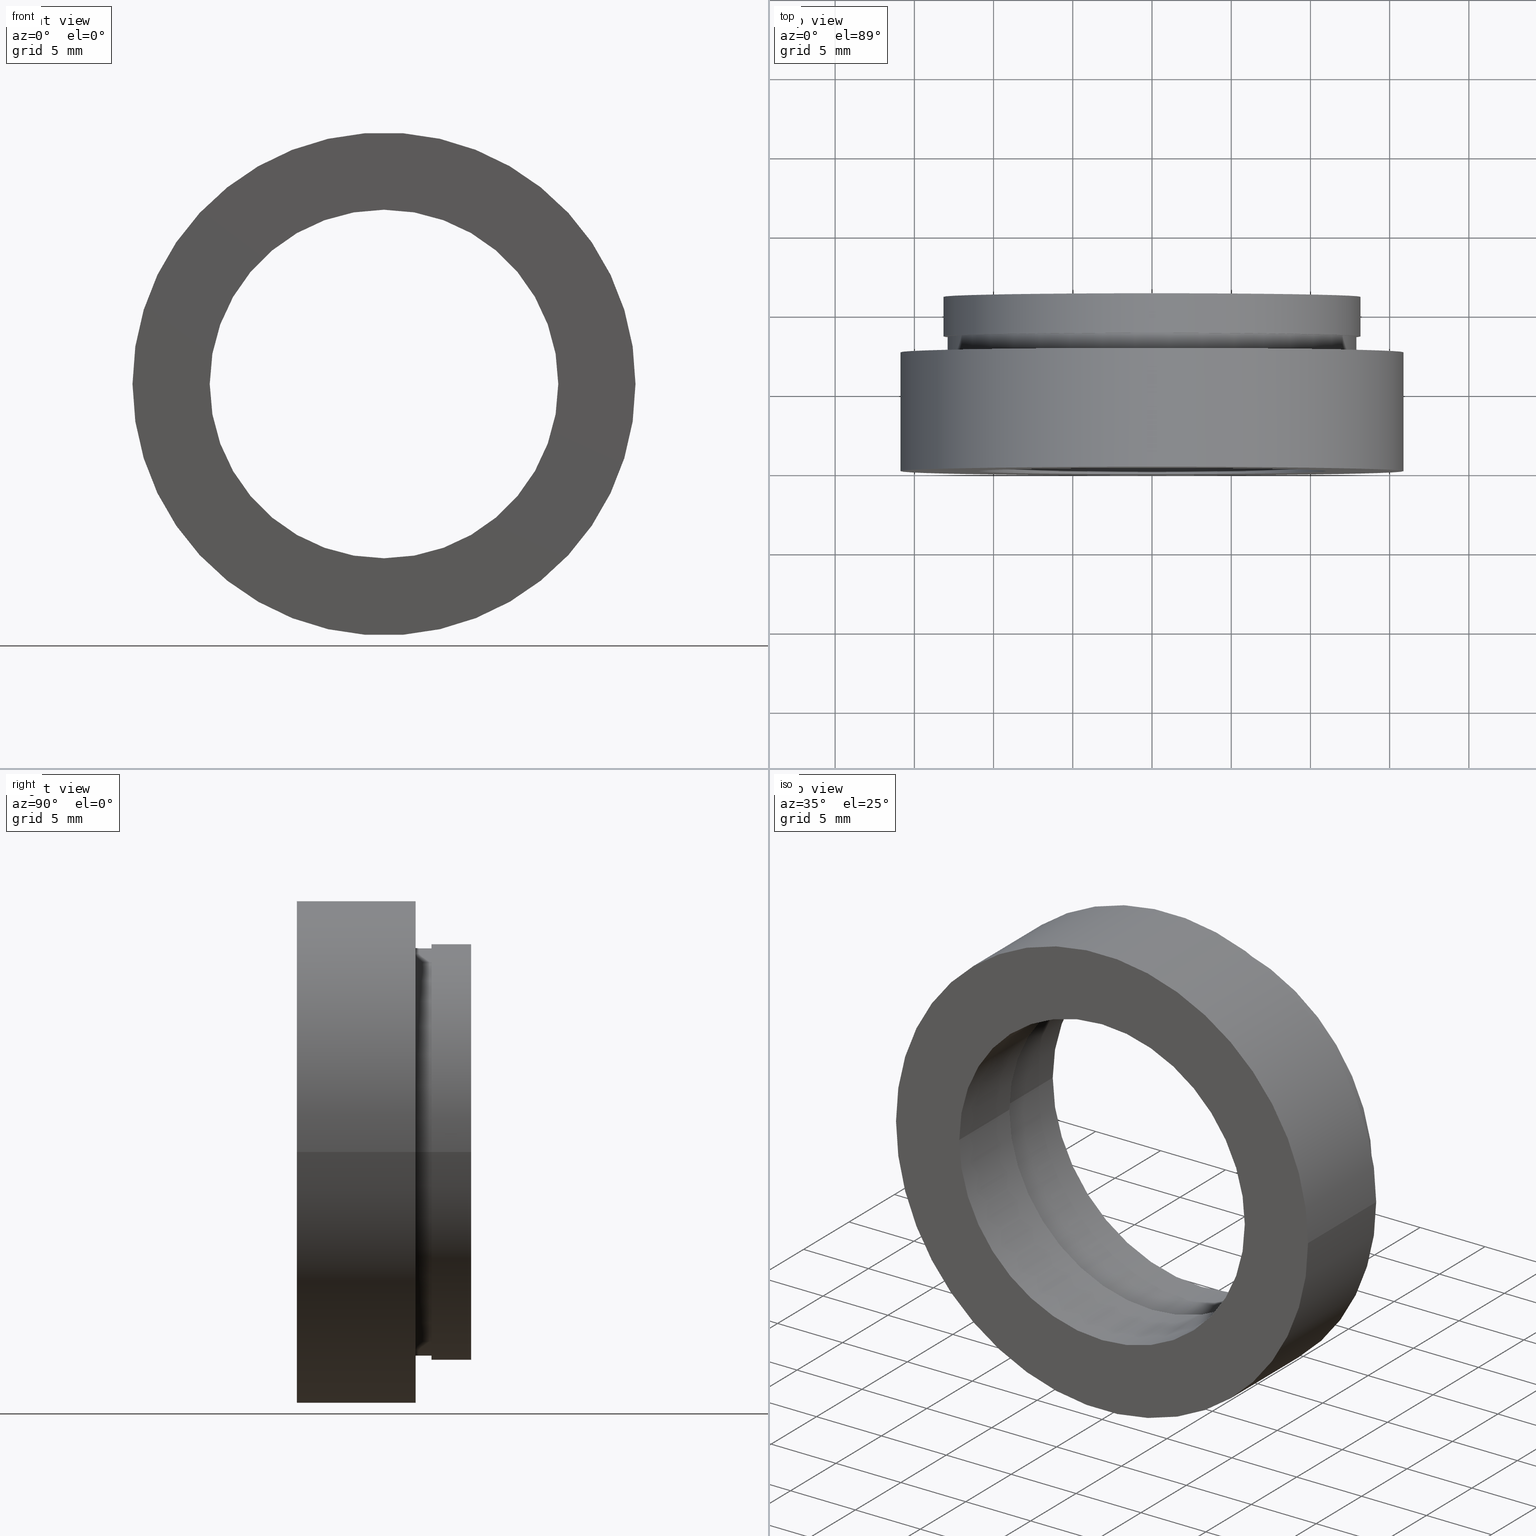
[diagram: canonical four-view strip — front | top / right | iso, engineering-drawing reading convention]
A machine part, canonical four-view strip (front | top / right | iso — engineering-drawing reading convention). The complete STEP part file that produces these views, byte-faithful:
ISO-10303-21;
HEADER;
FILE_DESCRIPTION (( 'STEP AP214' ),
    '1' );
FILE_NAME ('504117.STEP',
    '2019-10-10T01:30:43',
    ( '' ),
    ( '' ),
    'SwSTEP 2.0',
    'SolidWorks 2016',
    '' );
FILE_SCHEMA (( 'AUTOMOTIVE_DESIGN' ));
ENDSEC;

DATA;
#1 =( NAMED_UNIT ( * ) PLANE_ANGLE_UNIT ( ) SI_UNIT ( $, .RADIAN. ) );
#2 = FACE_OUTER_BOUND ( 'NONE', #67, .T. ) ;
#3 = ORIENTED_EDGE ( 'NONE', *, *, #204, .F. ) ;
#4 = CARTESIAN_POINT ( 'NONE',  ( 2.067940818438636500E-015, -3.469446951953614200E-015, 0.0000000000000000000 ) ) ;
#5 = EDGE_LOOP ( 'NONE', ( #502, #163 ) ) ;
#6 = LINE ( 'NONE', #264, #129 ) ;
#7 = DIRECTION ( 'NONE',  ( -1.000000000000000000, -1.508455196501571400E-016, 0.0000000000000000000 ) ) ;
#8 = SURFACE_STYLE_USAGE ( .BOTH. , #374 ) ;
#9 = CARTESIAN_POINT ( 'NONE',  ( 12.90000000000000200, 7.500000000000000000, 0.0000000000000000000 ) ) ;
#10 = SURFACE_STYLE_FILL_AREA ( #271 ) ;
#11 = DIRECTION ( 'NONE',  ( -1.224646799147351000E-016, 1.000000000000000000, -0.0000000000000000000 ) ) ;
#12 = DIRECTION ( 'NONE',  ( -1.224646799147351000E-016, 1.000000000000000000, -0.0000000000000000000 ) ) ;
#13 = DIRECTION ( 'NONE',  ( -1.224646799147351000E-016, 1.000000000000000000, -0.0000000000000000000 ) ) ;
#14 = FILL_AREA_STYLE ('',( #344 ) ) ;
#15 = CARTESIAN_POINT ( 'NONE',  ( 0.0000000000000000000, 16.88601823708207700, 0.0000000000000000000 ) ) ;
#16 = AXIS2_PLACEMENT_3D ( 'NONE', #4, #175, #98 ) ;
#17 = ORIENTED_EDGE ( 'NONE', *, *, #515, .T. ) ;
#18 = PLANE ( 'NONE',  #33 ) ;
#19 = DIRECTION ( 'NONE',  ( -1.224646799147351000E-016, 1.000000000000000000, -0.0000000000000000000 ) ) ;
#20 = DIRECTION ( 'NONE',  ( -1.000000000000000000, -1.577021341797097300E-016, 0.0000000000000000000 ) ) ;
#21 = CARTESIAN_POINT ( 'NONE',  ( 0.0000000000000000000, 16.88601823708207700, 0.0000000000000000000 ) ) ;
#22 = CARTESIAN_POINT ( 'NONE',  ( 0.0000000000000000000, 16.88601823708207700, 0.0000000000000000000 ) ) ;
#23 = CIRCLE ( 'NONE', #487, 12.90000000000000000 ) ;
#24 = LINE ( 'NONE', #512, #409 ) ;
#25 =( NAMED_UNIT ( * ) SI_UNIT ( $, .STERADIAN. ) SOLID_ANGLE_UNIT ( ) );
#26 =( NAMED_UNIT ( * ) PLANE_ANGLE_UNIT ( ) SI_UNIT ( $, .RADIAN. ) );
#27 = CARTESIAN_POINT ( 'NONE',  ( 1.026991039163387700E-015, 8.499999999999998200, 0.0000000000000000000 ) ) ;
#28 = SURFACE_STYLE_USAGE ( .BOTH. , #481 ) ;
#29 = FACE_BOUND ( 'NONE', #5, .T. ) ;
#30 =( NAMED_UNIT ( * ) PLANE_ANGLE_UNIT ( ) SI_UNIT ( $, .RADIAN. ) );
#31 = FACE_OUTER_BOUND ( 'NONE', #328, .T. ) ;
#32 = STYLED_ITEM ( 'NONE', ( #229 ), #356 ) ;
#33 = AXIS2_PLACEMENT_3D ( 'NONE', #9, #147, #193 ) ;
#34 = SURFACE_SIDE_STYLE ('',( #10 ) ) ;
#35 = COLOUR_RGB ( '',1.000000000000000000, 1.000000000000000000, 1.000000000000000000 ) ;
#36 =( GEOMETRIC_REPRESENTATION_CONTEXT ( 3 ) GLOBAL_UNCERTAINTY_ASSIGNED_CONTEXT ( ( #448 ) ) GLOBAL_UNIT_ASSIGNED_CONTEXT ( ( #111, #530, #446 ) ) REPRESENTATION_CONTEXT ( 'NONE', 'WORKASPACE' ) );
#37 = ORIENTED_EDGE ( 'NONE', *, *, #365, .T. ) ;
#38 = ADVANCED_FACE ( 'NONE', ( #511 ), #172, .T. ) ;
#39 = PRESENTATION_STYLE_ASSIGNMENT (( #394 ) ) ;
#40 = UNCERTAINTY_MEASURE_WITH_UNIT (LENGTH_MEASURE( 1.000000000000000100E-005 ), #181, 'distance_accuracy_value', 'NONE');
#41 = AXIS2_PLACEMENT_3D ( 'NONE', #60, #188, #477 ) ;
#42 = CIRCLE ( 'NONE', #16, 15.87499999999999600 ) ;
#43 = VERTEX_POINT ( 'NONE', #227 ) ;
#44 = DIRECTION ( 'NONE',  ( -1.224646799147351000E-016, 1.000000000000000000, -0.0000000000000000000 ) ) ;
#45 = FACE_BOUND ( 'NONE', #490, .T. ) ;
#46 = DIRECTION ( 'NONE',  ( -1.000000000000000000, -1.224646799147351000E-016, 0.0000000000000000000 ) ) ;
#47 = ORIENTED_EDGE ( 'NONE', *, *, #300, .F. ) ;
#48 = CARTESIAN_POINT ( 'NONE',  ( -11.50000000000000200, 10.99999999999999500, 0.0000000000000000000 ) ) ;
#49 = DIRECTION ( 'NONE',  ( -1.224646799147351000E-016, 1.000000000000000000, 0.0000000000000000000 ) ) ;
#50 = CARTESIAN_POINT ( 'NONE',  ( 15.87500000000000000, 2.985076572921666300E-016, 0.0000000000000000000 ) ) ;
#51 = EDGE_CURVE ( 'NONE', #93, #419, #370, .T. ) ;
#52 =( GEOMETRIC_REPRESENTATION_CONTEXT ( 3 ) GLOBAL_UNCERTAINTY_ASSIGNED_CONTEXT ( ( #343 ) ) GLOBAL_UNIT_ASSIGNED_CONTEXT ( ( #379, #54, #141 ) ) REPRESENTATION_CONTEXT ( 'NONE', 'WORKASPACE' ) );
#53 = DIRECTION ( 'NONE',  ( -1.224646799147351000E-016, 1.000000000000000000, -0.0000000000000000000 ) ) ;
#54 =( NAMED_UNIT ( * ) PLANE_ANGLE_UNIT ( ) SI_UNIT ( $, .RADIAN. ) );
#55 = DIRECTION ( 'NONE',  ( -1.000000000000000000, -1.318178933113075200E-016, 0.0000000000000000000 ) ) ;
#56 = FACE_OUTER_BOUND ( 'NONE', #489, .T. ) ;
#57 = AXIS2_PLACEMENT_3D ( 'NONE', #476, #149, #180 ) ;
#58 = CARTESIAN_POINT ( 'NONE',  ( -12.89999999999999900, 8.499999999999996400, 0.0000000000000000000 ) ) ;
#59 = CARTESIAN_POINT ( 'NONE',  ( 12.90000000000000200, 7.500000000000000000, 1.579794370900085700E-015 ) ) ;
#60 = CARTESIAN_POINT ( 'NONE',  ( 11.50000000000000200, 10.99999999999999800, 0.0000000000000000000 ) ) ;
#61 = FACE_OUTER_BOUND ( 'NONE', #153, .T. ) ;
#62 = SURFACE_STYLE_USAGE ( .BOTH. , #519 ) ;
#63 = DIRECTION ( 'NONE',  ( -1.000000000000000000, 0.0000000000000000000, 0.0000000000000000000 ) ) ;
#64 = CARTESIAN_POINT ( 'NONE',  ( 7.208293393765502500E-016, 10.99999999999999600, 0.0000000000000000000 ) ) ;
#65 = MECHANICAL_DESIGN_GEOMETRIC_PRESENTATION_REPRESENTATION (  '', ( #406 ), #475 ) ;
#66 = ORIENTED_EDGE ( 'NONE', *, *, #112, .F. ) ;
#67 = EDGE_LOOP ( 'NONE', ( #117, #393, #378, #329 ) ) ;
#68 = ORIENTED_EDGE ( 'NONE', *, *, #232, .T. ) ;
#69 = DIRECTION ( 'NONE',  ( -1.224646799147351000E-016, 1.000000000000000000, -0.0000000000000000000 ) ) ;
#70 = UNCERTAINTY_MEASURE_WITH_UNIT (LENGTH_MEASURE( 1.000000000000000100E-005 ), #509, 'distance_accuracy_value', 'NONE');
#71 = FACE_OUTER_BOUND ( 'NONE', #109, .T. ) ;
#72 = CARTESIAN_POINT ( 'NONE',  ( 11.00000000000000000, 16.88601823708207700, 1.347111479062088400E-015 ) ) ;
#73 = CARTESIAN_POINT ( 'NONE',  ( 0.0000000000000000000, 16.88601823708207700, 0.0000000000000000000 ) ) ;
#74 = ORIENTED_EDGE ( 'NONE', *, *, #252, .F. ) ;
#75 = COLOUR_RGB ( '',1.000000000000000000, 1.000000000000000000, 1.000000000000000000 ) ;
#76 = ORIENTED_EDGE ( 'NONE', *, *, #246, .T. ) ;
#77 = AXIS2_PLACEMENT_3D ( 'NONE', #64, #268, #55 ) ;
#78 = ORIENTED_EDGE ( 'NONE', *, *, #424, .F. ) ;
#79 = ORIENTED_EDGE ( 'NONE', *, *, #427, .F. ) ;
#80 = VERTEX_POINT ( 'NONE', #58 ) ;
#81 = ADVANCED_FACE ( 'NONE', ( #45, #167 ), #18, .F. ) ;
#82 = ADVANCED_FACE ( 'NONE', ( #56 ), #289, .F. ) ;
#83 = CYLINDRICAL_SURFACE ( 'NONE', #361, 11.00000000000000000 ) ;
#84 = ORIENTED_EDGE ( 'NONE', *, *, #403, .F. ) ;
#85 = EDGE_CURVE ( 'NONE', #162, #238, #6, .T. ) ;
#86 = AXIS2_PLACEMENT_3D ( 'NONE', #224, #101, #228 ) ;
#87 = MECHANICAL_DESIGN_GEOMETRIC_PRESENTATION_REPRESENTATION (  '', ( #122 ), #234 ) ;
#88 = VECTOR ( 'NONE', #12, 1000.000000000000000 ) ;
#89 = DIRECTION ( 'NONE',  ( -1.224646799147351000E-016, 1.000000000000000000, -0.0000000000000000000 ) ) ;
#90 = ORIENTED_EDGE ( 'NONE', *, *, #165, .F. ) ;
#91 = SURFACE_STYLE_USAGE ( .BOTH. , #330 ) ;
#92 = AXIS2_PLACEMENT_3D ( 'NONE', #185, #262, #152 ) ;
#93 = VERTEX_POINT ( 'NONE', #479 ) ;
#94 = FILL_AREA_STYLE ('',( #137 ) ) ;
#95 =( LENGTH_UNIT ( ) NAMED_UNIT ( * ) SI_UNIT ( .MILLI., .METRE. ) );
#96 = AXIS2_PLACEMENT_3D ( 'NONE', #171, #247, #128 ) ;
#97 = DIRECTION ( 'NONE',  ( -1.224646799147351000E-016, 1.000000000000000000, -0.0000000000000000000 ) ) ;
#98 = DIRECTION ( 'NONE',  ( -1.000000000000000000, -1.224646799147350700E-016, 0.0000000000000000000 ) ) ;
#99 = ORIENTED_EDGE ( 'NONE', *, *, #156, .T. ) ;
#100 = FILL_AREA_STYLE_COLOUR ( '', #267 ) ;
#101 = DIRECTION ( 'NONE',  ( 0.0000000000000000000, 0.0000000000000000000, 1.000000000000000000 ) ) ;
#102 = SURFACE_STYLE_USAGE ( .BOTH. , #298 ) ;
#103 = PRESENTATION_LAYER_ASSIGNMENT (  '', '', ( #525 ) ) ;
#104 = CARTESIAN_POINT ( 'NONE',  ( 2.067940818438636100E-015, 0.0000000000000000000, 0.0000000000000000000 ) ) ;
#105 = DIRECTION ( 'NONE',  ( -1.224646799147351000E-016, 1.000000000000000000, -0.0000000000000000000 ) ) ;
#106 = ORIENTED_EDGE ( 'NONE', *, *, #274, .T. ) ;
#107 = DIRECTION ( 'NONE',  ( -1.000000000000000000, -1.508455196501571200E-016, 0.0000000000000000000 ) ) ;
#108 = DIRECTION ( 'NONE',  ( -1.224646799147351000E-016, 1.000000000000000000, -0.0000000000000000000 ) ) ;
#109 = EDGE_LOOP ( 'NONE', ( #533, #206 ) ) ;
#110 = CARTESIAN_POINT ( 'NONE',  ( -10.99999999999999800, 5.499999999999996400, 0.0000000000000000000 ) ) ;
#111 =( LENGTH_UNIT ( ) NAMED_UNIT ( * ) SI_UNIT ( .MILLI., .METRE. ) );
#112 = EDGE_CURVE ( 'NONE', #395, #162, #250, .T. ) ;
#113 = AXIS2_PLACEMENT_3D ( 'NONE', #514, #218, #463 ) ;
#114 = CYLINDRICAL_SURFACE ( 'NONE', #386, 12.90000000000000000 ) ;
#115 = ORIENTED_EDGE ( 'NONE', *, *, #246, .F. ) ;
#116 = STYLED_ITEM ( 'NONE', ( #39 ), #210 ) ;
#117 = ORIENTED_EDGE ( 'NONE', *, *, #281, .F. ) ;
#118 = CARTESIAN_POINT ( 'NONE',  ( 1.026991039163387700E-015, 8.499999999999998200, 0.0000000000000000000 ) ) ;
#119 = DIRECTION ( 'NONE',  ( -1.224646799147351000E-016, 1.000000000000000000, -0.0000000000000000000 ) ) ;
#120 = STYLED_ITEM ( 'NONE', ( #398 ), #278 ) ;
#121 = ORIENTED_EDGE ( 'NONE', *, *, #274, .F. ) ;
#122 = STYLED_ITEM ( 'NONE', ( #183 ), #82 ) ;
#123 = CYLINDRICAL_SURFACE ( 'NONE', #177, 13.15999999999999800 ) ;
#124 = ORIENTED_EDGE ( 'NONE', *, *, #211, .F. ) ;
#125 = PRESENTATION_LAYER_ASSIGNMENT (  '', '', ( #406 ) ) ;
#126 = COLOUR_RGB ( '',1.000000000000000000, 1.000000000000000000, 1.000000000000000000 ) ;
#127 = DIRECTION ( 'NONE',  ( -1.000000000000000000, -2.185478394931410600E-016, 0.0000000000000000000 ) ) ;
#128 = DIRECTION ( 'NONE',  ( -1.000000000000000000, -1.344746880602176000E-016, 0.0000000000000000000 ) ) ;
#129 = VECTOR ( 'NONE', #433, 1000.000000000000000 ) ;
#130 = DIRECTION ( 'NONE',  ( -1.000000000000000000, 0.0000000000000000000, 0.0000000000000000000 ) ) ;
#131 = CARTESIAN_POINT ( 'NONE',  ( -11.49999999999999800, 5.499999999999996400, 0.0000000000000000000 ) ) ;
#132 = UNCERTAINTY_MEASURE_WITH_UNIT (LENGTH_MEASURE( 1.000000000000000100E-005 ), #293, 'distance_accuracy_value', 'NONE');
#133 = CIRCLE ( 'NONE', #436, 13.15999999999999800 ) ;
#134 = CARTESIAN_POINT ( 'NONE',  ( -15.87499999999999300, -5.413573745600033100E-015, 0.0000000000000000000 ) ) ;
#135 = CIRCLE ( 'NONE', #77, 13.16000000000000000 ) ;
#136 = PRODUCT_CONTEXT ( 'NONE', #384, 'mechanical' ) ;
#137 = FILL_AREA_STYLE_COLOUR ( '', #35 ) ;
#138 = EDGE_CURVE ( 'NONE', #395, #408, #24, .T. ) ;
#139 = PRODUCT_DEFINITION_FORMATION_WITH_SPECIFIED_SOURCE ( '�κ�', '', #310, .NOT_KNOWN. ) ;
#140 = CARTESIAN_POINT ( 'NONE',  ( -13.16000000000000000, 10.99999999999999500, 0.0000000000000000000 ) ) ;
#141 =( NAMED_UNIT ( * ) SI_UNIT ( $, .STERADIAN. ) SOLID_ANGLE_UNIT ( ) );
#142 = DIRECTION ( 'NONE',  ( -1.000000000000000000, -1.224646799147350700E-016, 0.0000000000000000000 ) ) ;
#143 = AXIS2_PLACEMENT_3D ( 'NONE', #308, #342, #20 ) ;
#144 = CLOSED_SHELL ( 'NONE', ( #322, #239, #278, #321, #82, #410, #210, #243, #367, #241, #412, #455, #496, #81, #38 ) ) ;
#145 = DIRECTION ( 'NONE',  ( -1.000000000000000000, -1.508455196501571200E-016, 0.0000000000000000000 ) ) ;
#146 = CARTESIAN_POINT ( 'NONE',  ( 1.149455719078122700E-015, 7.499999999999998200, 0.0000000000000000000 ) ) ;
#147 = DIRECTION ( 'NONE',  ( 1.224646799147351000E-016, -1.000000000000000000, 0.0000000000000000000 ) ) ;
#148 = FACE_OUTER_BOUND ( 'NONE', #474, .T. ) ;
#149 = DIRECTION ( 'NONE',  ( -1.224646799147351000E-016, 1.000000000000000000, -0.0000000000000000000 ) ) ;
#150 = CARTESIAN_POINT ( 'NONE',  ( 13.16000000000000000, 8.500000000000000000, 0.0000000000000000000 ) ) ;
#151 = AXIS2_PLACEMENT_3D ( 'NONE', #157, #158, #273 ) ;
#152 = DIRECTION ( 'NONE',  ( -1.000000000000000000, -1.318178933113075500E-016, 0.0000000000000000000 ) ) ;
#153 = EDGE_LOOP ( 'NONE', ( #115, #200 ) ) ;
#154 = SURFACE_SIDE_STYLE ('',( #447 ) ) ;
#155 =( LENGTH_UNIT ( ) NAMED_UNIT ( * ) SI_UNIT ( .MILLI., .METRE. ) );
#156 = EDGE_CURVE ( 'NONE', #279, #543, #176, .T. ) ;
#157 = CARTESIAN_POINT ( 'NONE',  ( 1.394385078907593000E-015, 5.499999999999998200, 0.0000000000000000000 ) ) ;
#158 = DIRECTION ( 'NONE',  ( -1.224646799147351000E-016, 1.000000000000000000, -0.0000000000000000000 ) ) ;
#159 = ORIENTED_EDGE ( 'NONE', *, *, #276, .F. ) ;
#160 = VECTOR ( 'NONE', #44, 1000.000000000000000 ) ;
#161 = AXIS2_PLACEMENT_3D ( 'NONE', #150, #49, #391 ) ;
#162 = VERTEX_POINT ( 'NONE', #469 ) ;
#163 = ORIENTED_EDGE ( 'NONE', *, *, #252, .T. ) ;
#164 = UNCERTAINTY_MEASURE_WITH_UNIT (LENGTH_MEASURE( 1.000000000000000100E-005 ), #155, 'distance_accuracy_value', 'NONE');
#165 = EDGE_CURVE ( 'NONE', #309, #364, #270, .T. ) ;
#166 = AXIS2_PLACEMENT_3D ( 'NONE', #27, #105, #354 ) ;
#167 = FACE_OUTER_BOUND ( 'NONE', #355, .T. ) ;
#168 = VERTEX_POINT ( 'NONE', #297 ) ;
#169 = CIRCLE ( 'NONE', #337, 11.50000000000000200 ) ;
#170 = VERTEX_POINT ( 'NONE', #390 ) ;
#171 = CARTESIAN_POINT ( 'NONE',  ( 1.149455719078122700E-015, 7.499999999999998200, 0.0000000000000000000 ) ) ;
#172 = CYLINDRICAL_SURFACE ( 'NONE', #458, 15.87500000000000000 ) ;
#173 = AXIS2_PLACEMENT_3D ( 'NONE', #225, #389, #346 ) ;
#174 = FILL_AREA_STYLE ('',( #312 ) ) ;
#175 = DIRECTION ( 'NONE',  ( -1.224646799147351000E-016, 1.000000000000000000, -0.0000000000000000000 ) ) ;
#176 = CIRCLE ( 'NONE', #57, 12.90000000000000000 ) ;
#177 = AXIS2_PLACEMENT_3D ( 'NONE', #22, #430, #397 ) ;
#178 = CARTESIAN_POINT ( 'NONE',  ( 13.15999999999999800, 16.88601823708207700, 1.611635187677916700E-015 ) ) ;
#179 = PRESENTATION_LAYER_ASSIGNMENT (  '', '', ( #122 ) ) ;
#180 = DIRECTION ( 'NONE',  ( -1.000000000000000000, -1.344746880602176000E-016, 0.0000000000000000000 ) ) ;
#181 =( LENGTH_UNIT ( ) NAMED_UNIT ( * ) SI_UNIT ( .MILLI., .METRE. ) );
#182 = CARTESIAN_POINT ( 'NONE',  ( 0.0000000000000000000, 16.88601823708207700, 0.0000000000000000000 ) ) ;
#183 = PRESENTATION_STYLE_ASSIGNMENT (( #62 ) ) ;
#184 = DIRECTION ( 'NONE',  ( -1.000000000000000000, 0.0000000000000000000, 0.0000000000000000000 ) ) ;
#185 = CARTESIAN_POINT ( 'NONE',  ( 1.026991039163387700E-015, 8.499999999999998200, 0.0000000000000000000 ) ) ;
#186 = PRESENTATION_STYLE_ASSIGNMENT (( #91 ) ) ;
#187 = CARTESIAN_POINT ( 'NONE',  ( 1.394385078907593000E-015, 5.499999999999998200, 0.0000000000000000000 ) ) ;
#188 = DIRECTION ( 'NONE',  ( 1.224646799147351000E-016, -1.000000000000000000, 0.0000000000000000000 ) ) ;
#189 = PRODUCT_RELATED_PRODUCT_CATEGORY ( 'part', '', ( #310 ) ) ;
#190 = DIRECTION ( 'NONE',  ( -1.224646799147351000E-016, 1.000000000000000000, -0.0000000000000000000 ) ) ;
#191 = DIRECTION ( 'NONE',  ( -1.224646799147351000E-016, 1.000000000000000000, -0.0000000000000000000 ) ) ;
#192 = ORIENTED_EDGE ( 'NONE', *, *, #400, .F. ) ;
#193 = DIRECTION ( 'NONE',  ( 1.000000000000000000, 1.224646799147351000E-016, 0.0000000000000000000 ) ) ;
#194 = DIRECTION ( 'NONE',  ( -1.000000000000000000, -1.577021341797097300E-016, 0.0000000000000000000 ) ) ;
#195 = DIRECTION ( 'NONE',  ( -1.000000000000000000, -1.092739197465705300E-016, 0.0000000000000000000 ) ) ;
#196 = LINE ( 'NONE', #230, #280 ) ;
#197 = PRODUCT_DEFINITION_CONTEXT ( 'detailed design', #470, 'design' ) ;
#198 = CIRCLE ( 'NONE', #327, 15.87500000000000000 ) ;
#199 = DIRECTION ( 'NONE',  ( -1.224646799147351000E-016, 1.000000000000000000, -0.0000000000000000000 ) ) ;
#200 = ORIENTED_EDGE ( 'NONE', *, *, #416, .F. ) ;
#201 = VERTEX_POINT ( 'NONE', #134 ) ;
#202 = MECHANICAL_DESIGN_GEOMETRIC_PRESENTATION_REPRESENTATION (  '', ( #32 ), #213 ) ;
#203 = CIRCLE ( 'NONE', #113, 13.16000000000000000 ) ;
#204 = EDGE_CURVE ( 'NONE', #170, #93, #528, .T. ) ;
#205 = VERTEX_POINT ( 'NONE', #140 ) ;
#206 = ORIENTED_EDGE ( 'NONE', *, *, #281, .T. ) ;
#207 = PRESENTATION_LAYER_ASSIGNMENT (  '', '', ( #32 ) ) ;
#208 = FACE_OUTER_BOUND ( 'NONE', #405, .T. ) ;
#209 = PRESENTATION_LAYER_ASSIGNMENT (  '', '', ( #501 ) ) ;
#210 = ADVANCED_FACE ( 'NONE', ( #208 ), #83, .F. ) ;
#211 = EDGE_CURVE ( 'NONE', #419, #93, #198, .T. ) ;
#212 = ORIENTED_EDGE ( 'NONE', *, *, #336, .F. ) ;
#213 =( GEOMETRIC_REPRESENTATION_CONTEXT ( 3 ) GLOBAL_UNCERTAINTY_ASSIGNED_CONTEXT ( ( #132 ) ) GLOBAL_UNIT_ASSIGNED_CONTEXT ( ( #293, #1, #251 ) ) REPRESENTATION_CONTEXT ( 'NONE', 'WORKASPACE' ) );
#214 = EDGE_LOOP ( 'NONE', ( #76, #535, #159, #357 ) ) ;
#215 = CARTESIAN_POINT ( 'NONE',  ( 13.16000000000000200, 8.500000000000000000, 1.611635187677917100E-015 ) ) ;
#216 =( LENGTH_UNIT ( ) NAMED_UNIT ( * ) SI_UNIT ( .MILLI., .METRE. ) );
#217 = CARTESIAN_POINT ( 'NONE',  ( 1.026991039163387700E-015, 8.499999999999998200, 0.0000000000000000000 ) ) ;
#218 = DIRECTION ( 'NONE',  ( -1.224646799147351000E-016, 1.000000000000000000, -0.0000000000000000000 ) ) ;
#219 = CIRCLE ( 'NONE', #314, 11.00000000000000000 ) ;
#220 = MECHANICAL_DESIGN_GEOMETRIC_PRESENTATION_REPRESENTATION (  '', ( #282 ), #275 ) ;
#221 = DIRECTION ( 'NONE',  ( -1.224646799147351000E-016, 1.000000000000000000, -0.0000000000000000000 ) ) ;
#222 = AXIS2_PLACEMENT_3D ( 'NONE', #187, #13, #7 ) ;
#223 = DIRECTION ( 'NONE',  ( -1.224646799147351000E-016, 1.000000000000000000, -0.0000000000000000000 ) ) ;
#224 = CARTESIAN_POINT ( 'NONE',  ( 0.0000000000000000000, 0.0000000000000000000, 0.0000000000000000000 ) ) ;
#225 = CARTESIAN_POINT ( 'NONE',  ( 11.00000000000000200, 5.500000000000000000, 0.0000000000000000000 ) ) ;
#226 = ORIENTED_EDGE ( 'NONE', *, *, #51, .F. ) ;
#227 = CARTESIAN_POINT ( 'NONE',  ( 12.90000000000000200, 8.500000000000000000, 1.579794370900085700E-015 ) ) ;
#228 = DIRECTION ( 'NONE',  ( 1.000000000000000000, 0.0000000000000000000, 0.0000000000000000000 ) ) ;
#229 = PRESENTATION_STYLE_ASSIGNMENT (( #8 ) ) ;
#230 = CARTESIAN_POINT ( 'NONE',  ( -11.00000000000000000, 16.88601823708207700, 0.0000000000000000000 ) ) ;
#231 = FILL_AREA_STYLE_COLOUR ( '', #126 ) ;
#232 = EDGE_CURVE ( 'NONE', #279, #80, #468, .T. ) ;
#233 = MECHANICAL_DESIGN_GEOMETRIC_PRESENTATION_REPRESENTATION (  '', ( #501 ), #450 ) ;
#234 =( GEOMETRIC_REPRESENTATION_CONTEXT ( 3 ) GLOBAL_UNCERTAINTY_ASSIGNED_CONTEXT ( ( #70 ) ) GLOBAL_UNIT_ASSIGNED_CONTEXT ( ( #509, #522, #348 ) ) REPRESENTATION_CONTEXT ( 'NONE', 'WORKASPACE' ) );
#235 =( LENGTH_UNIT ( ) NAMED_UNIT ( * ) SI_UNIT ( .MILLI., .METRE. ) );
#236 = CIRCLE ( 'NONE', #96, 12.90000000000000000 ) ;
#237 = LINE ( 'NONE', #72, #263 ) ;
#238 = VERTEX_POINT ( 'NONE', #527 ) ;
#239 = ADVANCED_FACE ( 'NONE', ( #31 ), #114, .T. ) ;
#240 = FACE_OUTER_BOUND ( 'NONE', #404, .T. ) ;
#241 = ADVANCED_FACE ( 'NONE', ( #537, #507 ), #523, .F. ) ;
#242 = SURFACE_STYLE_FILL_AREA ( #14 ) ;
#243 = ADVANCED_FACE ( 'NONE', ( #497, #71 ), #435, .F. ) ;
#244 = COLOUR_RGB ( '',1.000000000000000000, 1.000000000000000000, 1.000000000000000000 ) ;
#245 = MECHANICAL_DESIGN_GEOMETRIC_PRESENTATION_REPRESENTATION (  '', ( #120 ), #36 ) ;
#246 = EDGE_CURVE ( 'NONE', #538, #413, #292, .T. ) ;
#247 = DIRECTION ( 'NONE',  ( -1.224646799147351000E-016, 1.000000000000000000, -0.0000000000000000000 ) ) ;
#248 = ORIENTED_EDGE ( 'NONE', *, *, #418, .F. ) ;
#249 = DIRECTION ( 'NONE',  ( -1.000000000000000000, 0.0000000000000000000, 0.0000000000000000000 ) ) ;
#250 = CIRCLE ( 'NONE', #222, 11.50000000000000000 ) ;
#251 =( NAMED_UNIT ( * ) SI_UNIT ( $, .STERADIAN. ) SOLID_ANGLE_UNIT ( ) );
#252 = EDGE_CURVE ( 'NONE', #43, #80, #453, .T. ) ;
#253 = AXIS2_PLACEMENT_3D ( 'NONE', #505, #97, #503 ) ;
#254 = COLOUR_RGB ( '',1.000000000000000000, 1.000000000000000000, 1.000000000000000000 ) ;
#255 = PLANE ( 'NONE',  #369 ) ;
#256 = PRESENTATION_LAYER_ASSIGNMENT (  '', '', ( #116 ) ) ;
#257 = ORIENTED_EDGE ( 'NONE', *, *, #449, .T. ) ;
#258 = EDGE_LOOP ( 'NONE', ( #192, #372, #296, #212 ) ) ;
#259 = FILL_AREA_STYLE_COLOUR ( '', #254 ) ;
#260 = CARTESIAN_POINT ( 'NONE',  ( -15.87500000000000000, 16.88601823708207300, 0.0000000000000000000 ) ) ;
#261 = CARTESIAN_POINT ( 'NONE',  ( -13.15999999999999700, 8.499999999999996400, 0.0000000000000000000 ) ) ;
#262 = DIRECTION ( 'NONE',  ( -1.224646799147351000E-016, 1.000000000000000000, -0.0000000000000000000 ) ) ;
#263 = VECTOR ( 'NONE', #199, 1000.000000000000000 ) ;
#264 = CARTESIAN_POINT ( 'NONE',  ( 11.50000000000000000, 16.88601823708207700, 1.408343819019456200E-015 ) ) ;
#265 = DIRECTION ( 'NONE',  ( -1.224646799147351000E-016, 1.000000000000000000, -0.0000000000000000000 ) ) ;
#266 = DIRECTION ( 'NONE',  ( -1.224646799147351000E-016, 1.000000000000000000, -0.0000000000000000000 ) ) ;
#267 = COLOUR_RGB ( '',1.000000000000000000, 1.000000000000000000, 1.000000000000000000 ) ;
#268 = DIRECTION ( 'NONE',  ( -1.224646799147351000E-016, 1.000000000000000000, -0.0000000000000000000 ) ) ;
#269 = ORIENTED_EDGE ( 'NONE', *, *, #360, .T. ) ;
#270 = CIRCLE ( 'NONE', #143, 11.00000000000000000 ) ;
#271 = FILL_AREA_STYLE ('',( #358 ) ) ;
#272 = EDGE_LOOP ( 'NONE', ( #316, #347 ) ) ;
#273 = DIRECTION ( 'NONE',  ( -1.000000000000000000, -1.508455196501571400E-016, 0.0000000000000000000 ) ) ;
#274 = EDGE_CURVE ( 'NONE', #442, #168, #542, .T. ) ;
#275 =( GEOMETRIC_REPRESENTATION_CONTEXT ( 3 ) GLOBAL_UNCERTAINTY_ASSIGNED_CONTEXT ( ( #465 ) ) GLOBAL_UNIT_ASSIGNED_CONTEXT ( ( #95, #295, #334 ) ) REPRESENTATION_CONTEXT ( 'NONE', 'WORKASPACE' ) );
#276 = EDGE_CURVE ( 'NONE', #205, #504, #135, .T. ) ;
#277 = ORIENTED_EDGE ( 'NONE', *, *, #85, .F. ) ;
#278 = ADVANCED_FACE ( 'NONE', ( #491 ), #123, .T. ) ;
#279 = VERTEX_POINT ( 'NONE', #399 ) ;
#280 = VECTOR ( 'NONE', #265, 1000.000000000000000 ) ;
#281 = EDGE_CURVE ( 'NONE', #162, #395, #368, .T. ) ;
#282 = STYLED_ITEM ( 'NONE', ( #186 ), #367 ) ;
#283 = MECHANICAL_DESIGN_GEOMETRIC_PRESENTATION_REPRESENTATION (  '', ( #116 ), #340 ) ;
#284 = UNCERTAINTY_MEASURE_WITH_UNIT (LENGTH_MEASURE( 1.000000000000000100E-005 ), #216, 'distance_accuracy_value', 'NONE');
#285 = EDGE_LOOP ( 'NONE', ( #286, #443, #124, #524 ) ) ;
#286 = ORIENTED_EDGE ( 'NONE', *, *, #325, .T. ) ;
#287 = ORIENTED_EDGE ( 'NONE', *, *, #456, .F. ) ;
#288 = SURFACE_SIDE_STYLE ('',( #440 ) ) ;
#289 = CYLINDRICAL_SURFACE ( 'NONE', #307, 11.00000000000000000 ) ;
#290 = LINE ( 'NONE', #513, #396 ) ;
#291 = DIRECTION ( 'NONE',  ( -1.000000000000000000, -1.344746880602176000E-016, 0.0000000000000000000 ) ) ;
#292 = CIRCLE ( 'NONE', #92, 13.15999999999999800 ) ;
#293 =( LENGTH_UNIT ( ) NAMED_UNIT ( * ) SI_UNIT ( .MILLI., .METRE. ) );
#294 = CARTESIAN_POINT ( 'NONE',  ( 15.87500000000000000, 16.88601823708208000, 1.944126793646423200E-015 ) ) ;
#295 =( NAMED_UNIT ( * ) PLANE_ANGLE_UNIT ( ) SI_UNIT ( $, .RADIAN. ) );
#296 = ORIENTED_EDGE ( 'NONE', *, *, #485, .T. ) ;
#297 = CARTESIAN_POINT ( 'NONE',  ( -10.99999999999999800, -1.347111479062085800E-015, 0.0000000000000000000 ) ) ;
#298 = SURFACE_SIDE_STYLE ('',( #242 ) ) ;
#299 = CARTESIAN_POINT ( 'NONE',  ( 0.0000000000000000000, 16.88601823708207700, 0.0000000000000000000 ) ) ;
#300 = EDGE_CURVE ( 'NONE', #442, #364, #237, .T. ) ;
#301 = LINE ( 'NONE', #178, #160 ) ;
#302 = AXIS2_PLACEMENT_3D ( 'NONE', #445, #69, #315 ) ;
#303 = CARTESIAN_POINT ( 'NONE',  ( 0.0000000000000000000, 16.88601823708207700, 0.0000000000000000000 ) ) ;
#304 = CYLINDRICAL_SURFACE ( 'NONE', #352, 11.50000000000000000 ) ;
#305 = APPLICATION_PROTOCOL_DEFINITION ( 'draft international standard', 'automotive_design', 1998, #470 ) ;
#306 = DIRECTION ( 'NONE',  ( -1.224646799147351000E-016, 1.000000000000000000, -0.0000000000000000000 ) ) ;
#307 = AXIS2_PLACEMENT_3D ( 'NONE', #303, #53, #184 ) ;
#308 = CARTESIAN_POINT ( 'NONE',  ( 1.394385078907593000E-015, 5.499999999999998200, 0.0000000000000000000 ) ) ;
#309 = VERTEX_POINT ( 'NONE', #110 ) ;
#310 = PRODUCT ( '504117', '504117', '', ( #136 ) ) ;
#311 = DIRECTION ( 'NONE',  ( -1.224646799147351000E-016, 1.000000000000000000, -0.0000000000000000000 ) ) ;
#312 = FILL_AREA_STYLE_COLOUR ( '', #75 ) ;
#313 = ORIENTED_EDGE ( 'NONE', *, *, #51, .T. ) ;
#314 = AXIS2_PLACEMENT_3D ( 'NONE', #104, #221, #438 ) ;
#315 = DIRECTION ( 'NONE',  ( -1.000000000000000000, -2.185478394931410600E-016, 0.0000000000000000000 ) ) ;
#316 = ORIENTED_EDGE ( 'NONE', *, *, #276, .T. ) ;
#317 =( NAMED_UNIT ( * ) SI_UNIT ( $, .STERADIAN. ) SOLID_ANGLE_UNIT ( ) );
#318 = ORIENTED_EDGE ( 'NONE', *, *, #232, .F. ) ;
#319 = PRESENTATION_LAYER_ASSIGNMENT (  '', '', ( #282 ) ) ;
#320 = VECTOR ( 'NONE', #439, 1000.000000000000000 ) ;
#321 = ADVANCED_FACE ( 'NONE', ( #2 ), #304, .F. ) ;
#322 = ADVANCED_FACE ( 'NONE', ( #415 ), #362, .T. ) ;
#323 = CYLINDRICAL_SURFACE ( 'NONE', #326, 13.15999999999999800 ) ;
#324 = SURFACE_STYLE_FILL_AREA ( #521 ) ;
#325 = EDGE_CURVE ( 'NONE', #201, #170, #42, .T. ) ;
#326 = AXIS2_PLACEMENT_3D ( 'NONE', #182, #422, #130 ) ;
#327 = AXIS2_PLACEMENT_3D ( 'NONE', #146, #306, #195 ) ;
#328 = EDGE_LOOP ( 'NONE', ( #99, #269, #84, #318 ) ) ;
#329 = ORIENTED_EDGE ( 'NONE', *, *, #138, .F. ) ;
#330 = SURFACE_SIDE_STYLE ('',( #518 ) ) ;
#331 = SURFACE_STYLE_FILL_AREA ( #174 ) ;
#332 = FILL_AREA_STYLE_COLOUR ( '', #244 ) ;
#333 = ORIENTED_EDGE ( 'NONE', *, *, #165, .T. ) ;
#334 =( NAMED_UNIT ( * ) SI_UNIT ( $, .STERADIAN. ) SOLID_ANGLE_UNIT ( ) );
#335 = CYLINDRICAL_SURFACE ( 'NONE', #460, 12.90000000000000000 ) ;
#336 = EDGE_CURVE ( 'NONE', #504, #205, #203, .T. ) ;
#337 = AXIS2_PLACEMENT_3D ( 'NONE', #376, #349, #107 ) ;
#338 = DIRECTION ( 'NONE',  ( -1.224646799147351000E-016, 1.000000000000000000, -0.0000000000000000000 ) ) ;
#339 =( NAMED_UNIT ( * ) SI_UNIT ( $, .STERADIAN. ) SOLID_ANGLE_UNIT ( ) );
#340 =( GEOMETRIC_REPRESENTATION_CONTEXT ( 3 ) GLOBAL_UNCERTAINTY_ASSIGNED_CONTEXT ( ( #164 ) ) GLOBAL_UNIT_ASSIGNED_CONTEXT ( ( #155, #444, #25 ) ) REPRESENTATION_CONTEXT ( 'NONE', 'WORKASPACE' ) );
#341 = COLOUR_RGB ( '',1.000000000000000000, 1.000000000000000000, 1.000000000000000000 ) ;
#342 = DIRECTION ( 'NONE',  ( -1.224646799147351000E-016, 1.000000000000000000, -0.0000000000000000000 ) ) ;
#343 = UNCERTAINTY_MEASURE_WITH_UNIT (LENGTH_MEASURE( 1.000000000000000100E-005 ), #379, 'distance_accuracy_value', 'NONE');
#344 = FILL_AREA_STYLE_COLOUR ( '', #350 ) ;
#345 = CARTESIAN_POINT ( 'NONE',  ( 2.067940818438636100E-015, 0.0000000000000000000, 0.0000000000000000000 ) ) ;
#346 = DIRECTION ( 'NONE',  ( 1.000000000000000000, 1.224646799147351000E-016, 0.0000000000000000000 ) ) ;
#347 = ORIENTED_EDGE ( 'NONE', *, *, #336, .T. ) ;
#348 =( NAMED_UNIT ( * ) SI_UNIT ( $, .STERADIAN. ) SOLID_ANGLE_UNIT ( ) );
#349 = DIRECTION ( 'NONE',  ( -1.224646799147351000E-016, 1.000000000000000000, -0.0000000000000000000 ) ) ;
#350 = COLOUR_RGB ( '',1.000000000000000000, 1.000000000000000000, 1.000000000000000000 ) ;
#351 = LINE ( 'NONE', #377, #88 ) ;
#352 = AXIS2_PLACEMENT_3D ( 'NONE', #73, #311, #529 ) ;
#353 = PRESENTATION_STYLE_ASSIGNMENT (( #532 ) ) ;
#354 = DIRECTION ( 'NONE',  ( -1.000000000000000000, -1.344746880602176000E-016, 0.0000000000000000000 ) ) ;
#355 = EDGE_LOOP ( 'NONE', ( #434, #313 ) ) ;
#356 = MANIFOLD_SOLID_BREP ( '��ת1', #144 ) ;
#357 = ORIENTED_EDGE ( 'NONE', *, *, #485, .F. ) ;
#358 = FILL_AREA_STYLE_COLOUR ( '', #341 ) ;
#359 = FACE_OUTER_BOUND ( 'NONE', #493, .T. ) ;
#360 = EDGE_CURVE ( 'NONE', #543, #43, #351, .T. ) ;
#361 = AXIS2_PLACEMENT_3D ( 'NONE', #383, #338, #462 ) ;
#362 = CYLINDRICAL_SURFACE ( 'NONE', #302, 15.87500000000000000 ) ;
#363 = ORIENTED_EDGE ( 'NONE', *, *, #488, .T. ) ;
#364 = VERTEX_POINT ( 'NONE', #461 ) ;
#365 = EDGE_CURVE ( 'NONE', #170, #201, #536, .T. ) ;
#366 =( GEOMETRIC_REPRESENTATION_CONTEXT ( 3 ) GLOBAL_UNCERTAINTY_ASSIGNED_CONTEXT ( ( #40 ) ) GLOBAL_UNIT_ASSIGNED_CONTEXT ( ( #181, #26, #339 ) ) REPRESENTATION_CONTEXT ( 'NONE', 'WORKASPACE' ) );
#367 = ADVANCED_FACE ( 'NONE', ( #148 ), #467, .F. ) ;
#368 = CIRCLE ( 'NONE', #151, 11.50000000000000000 ) ;
#369 = AXIS2_PLACEMENT_3D ( 'NONE', #50, #466, #46 ) ;
#370 = CIRCLE ( 'NONE', #541, 15.87500000000000000 ) ;
#371 = SURFACE_STYLE_USAGE ( .BOTH. , #288 ) ;
#372 = ORIENTED_EDGE ( 'NONE', *, *, #416, .T. ) ;
#373 = DIRECTION ( 'NONE',  ( -1.224646799147351000E-016, 1.000000000000000000, -0.0000000000000000000 ) ) ;
#374 = SURFACE_SIDE_STYLE ('',( #331 ) ) ;
#375 = UNCERTAINTY_MEASURE_WITH_UNIT (LENGTH_MEASURE( 1.000000000000000100E-005 ), #235, 'distance_accuracy_value', 'NONE');
#376 = CARTESIAN_POINT ( 'NONE',  ( 7.208293393765502500E-016, 10.99999999999999600, 0.0000000000000000000 ) ) ;
#377 = CARTESIAN_POINT ( 'NONE',  ( 12.90000000000000000, 16.88601823708207700, 1.579794370900085700E-015 ) ) ;
#378 = ORIENTED_EDGE ( 'NONE', *, *, #424, .T. ) ;
#379 =( LENGTH_UNIT ( ) NAMED_UNIT ( * ) SI_UNIT ( .MILLI., .METRE. ) );
#380 = CARTESIAN_POINT ( 'NONE',  ( -12.90000000000000000, 16.88601823708207700, 0.0000000000000000000 ) ) ;
#381 = ORIENTED_EDGE ( 'NONE', *, *, #300, .T. ) ;
#382 = PRODUCT_DEFINITION ( 'δ֪', '', #139, #197 ) ;
#383 = CARTESIAN_POINT ( 'NONE',  ( 0.0000000000000000000, 16.88601823708207700, 0.0000000000000000000 ) ) ;
#384 = APPLICATION_CONTEXT ( 'automotive_design' ) ;
#385 = VECTOR ( 'NONE', #266, 1000.000000000000000 ) ;
#386 = AXIS2_PLACEMENT_3D ( 'NONE', #15, #108, #392 ) ;
#387 = CARTESIAN_POINT ( 'NONE',  ( 1.149455719078122700E-015, 7.499999999999998200, 0.0000000000000000000 ) ) ;
#388 = CARTESIAN_POINT ( 'NONE',  ( 7.208293393765502500E-016, 10.99999999999999600, 0.0000000000000000000 ) ) ;
#389 = DIRECTION ( 'NONE',  ( 1.224646799147351000E-016, -1.000000000000000000, 0.0000000000000000000 ) ) ;
#390 = CARTESIAN_POINT ( 'NONE',  ( 15.87500000000000000, -1.525320158307194900E-015, 1.944126793646423200E-015 ) ) ;
#391 = DIRECTION ( 'NONE',  ( -1.000000000000000000, -1.224646799147351000E-016, 0.0000000000000000000 ) ) ;
#392 = DIRECTION ( 'NONE',  ( -1.000000000000000000, 0.0000000000000000000, 0.0000000000000000000 ) ) ;
#393 = ORIENTED_EDGE ( 'NONE', *, *, #85, .T. ) ;
#394 = SURFACE_STYLE_USAGE ( .BOTH. , #154 ) ;
#395 = VERTEX_POINT ( 'NONE', #131 ) ;
#396 = VECTOR ( 'NONE', #11, 1000.000000000000000 ) ;
#397 = DIRECTION ( 'NONE',  ( -1.000000000000000000, 0.0000000000000000000, 0.0000000000000000000 ) ) ;
#398 = PRESENTATION_STYLE_ASSIGNMENT (( #28 ) ) ;
#399 = CARTESIAN_POINT ( 'NONE',  ( -12.89999999999999900, 7.499999999999996400, 0.0000000000000000000 ) ) ;
#400 = EDGE_CURVE ( 'NONE', #413, #504, #301, .T. ) ;
#401 = EDGE_LOOP ( 'NONE', ( #3, #37, #17, #226 ) ) ;
#402 = ORIENTED_EDGE ( 'NONE', *, *, #418, .T. ) ;
#403 = EDGE_CURVE ( 'NONE', #80, #43, #23, .T. ) ;
#404 = EDGE_LOOP ( 'NONE', ( #531, #402, #68, #74 ) ) ;
#405 = EDGE_LOOP ( 'NONE', ( #47, #79, #363, #333 ) ) ;
#406 = STYLED_ITEM ( 'NONE', ( #478 ), #412 ) ;
#407 = ORIENTED_EDGE ( 'NONE', *, *, #427, .T. ) ;
#408 = VERTEX_POINT ( 'NONE', #48 ) ;
#409 = VECTOR ( 'NONE', #190, 1000.000000000000000 ) ;
#410 = ADVANCED_FACE ( 'NONE', ( #359, #452 ), #255, .F. ) ;
#411 = ORIENTED_EDGE ( 'NONE', *, *, #456, .T. ) ;
#412 = ADVANCED_FACE ( 'NONE', ( #544 ), #323, .T. ) ;
#413 = VERTEX_POINT ( 'NONE', #215 ) ;
#414 = ORIENTED_EDGE ( 'NONE', *, *, #325, .F. ) ;
#415 = FACE_OUTER_BOUND ( 'NONE', #285, .T. ) ;
#416 = EDGE_CURVE ( 'NONE', #413, #538, #133, .T. ) ;
#417 = AXIS2_PLACEMENT_3D ( 'NONE', #345, #191, #142 ) ;
#418 = EDGE_CURVE ( 'NONE', #543, #279, #236, .T. ) ;
#419 = VERTEX_POINT ( 'NONE', #534 ) ;
#420 =( NAMED_UNIT ( * ) SI_UNIT ( $, .STERADIAN. ) SOLID_ANGLE_UNIT ( ) );
#421 = EDGE_LOOP ( 'NONE', ( #90, #287 ) ) ;
#422 = DIRECTION ( 'NONE',  ( -1.224646799147351000E-016, 1.000000000000000000, -0.0000000000000000000 ) ) ;
#423 = DIRECTION ( 'NONE',  ( -1.224646799147351000E-016, 1.000000000000000000, -0.0000000000000000000 ) ) ;
#424 = EDGE_CURVE ( 'NONE', #238, #408, #169, .T. ) ;
#425 = AXIS2_PLACEMENT_3D ( 'NONE', #299, #373, #249 ) ;
#426 = CARTESIAN_POINT ( 'NONE',  ( 1.394385078907593000E-015, 5.499999999999998200, 0.0000000000000000000 ) ) ;
#427 = EDGE_CURVE ( 'NONE', #168, #442, #219, .T. ) ;
#428 = DIRECTION ( 'NONE',  ( -1.000000000000000000, -1.092739197465705300E-016, 0.0000000000000000000 ) ) ;
#429 = LINE ( 'NONE', #260, #385 ) ;
#430 = DIRECTION ( 'NONE',  ( -1.224646799147351000E-016, 1.000000000000000000, -0.0000000000000000000 ) ) ;
#431 = CARTESIAN_POINT ( 'NONE',  ( 11.00000000000000200, 1.347111479062085800E-015, 1.347111479062088400E-015 ) ) ;
#432 = ORIENTED_EDGE ( 'NONE', *, *, #156, .F. ) ;
#433 = DIRECTION ( 'NONE',  ( -1.224646799147351000E-016, 1.000000000000000000, -0.0000000000000000000 ) ) ;
#434 = ORIENTED_EDGE ( 'NONE', *, *, #211, .T. ) ;
#435 = PLANE ( 'NONE',  #173 ) ;
#436 = AXIS2_PLACEMENT_3D ( 'NONE', #118, #119, #454 ) ;
#437 = FILL_AREA_STYLE ('',( #100 ) ) ;
#438 = DIRECTION ( 'NONE',  ( -1.000000000000000000, -1.224646799147350700E-016, 0.0000000000000000000 ) ) ;
#439 = DIRECTION ( 'NONE',  ( -1.224646799147351000E-016, 1.000000000000000000, -0.0000000000000000000 ) ) ;
#440 = SURFACE_STYLE_FILL_AREA ( #471 ) ;
#441 = VECTOR ( 'NONE', #472, 1000.000000000000000 ) ;
#442 = VERTEX_POINT ( 'NONE', #431 ) ;
#443 = ORIENTED_EDGE ( 'NONE', *, *, #204, .T. ) ;
#444 =( NAMED_UNIT ( * ) PLANE_ANGLE_UNIT ( ) SI_UNIT ( $, .RADIAN. ) );
#445 = CARTESIAN_POINT ( 'NONE',  ( 0.0000000000000000000, 16.88601823708207700, 0.0000000000000000000 ) ) ;
#446 =( NAMED_UNIT ( * ) SI_UNIT ( $, .STERADIAN. ) SOLID_ANGLE_UNIT ( ) );
#447 = SURFACE_STYLE_FILL_AREA ( #526 ) ;
#448 = UNCERTAINTY_MEASURE_WITH_UNIT (LENGTH_MEASURE( 1.000000000000000100E-005 ), #111, 'distance_accuracy_value', 'NONE');
#449 = EDGE_CURVE ( 'NONE', #408, #238, #540, .T. ) ;
#450 =( GEOMETRIC_REPRESENTATION_CONTEXT ( 3 ) GLOBAL_UNCERTAINTY_ASSIGNED_CONTEXT ( ( #375 ) ) GLOBAL_UNIT_ASSIGNED_CONTEXT ( ( #235, #30, #317 ) ) REPRESENTATION_CONTEXT ( 'NONE', 'WORKASPACE' ) );
#451 = ORIENTED_EDGE ( 'NONE', *, *, #488, .F. ) ;
#452 = FACE_BOUND ( 'NONE', #459, .T. ) ;
#453 = CIRCLE ( 'NONE', #166, 12.90000000000000000 ) ;
#454 = DIRECTION ( 'NONE',  ( -1.000000000000000000, -1.318178933113075500E-016, 0.0000000000000000000 ) ) ;
#455 = ADVANCED_FACE ( 'NONE', ( #61, #29 ), #473, .F. ) ;
#456 = EDGE_CURVE ( 'NONE', #364, #309, #506, .T. ) ;
#457 = PRESENTATION_LAYER_ASSIGNMENT (  '', '', ( #120 ) ) ;
#458 = AXIS2_PLACEMENT_3D ( 'NONE', #500, #89, #127 ) ;
#459 = EDGE_LOOP ( 'NONE', ( #407, #106 ) ) ;
#460 = AXIS2_PLACEMENT_3D ( 'NONE', #21, #19, #63 ) ;
#461 = CARTESIAN_POINT ( 'NONE',  ( 11.00000000000000200, 5.500000000000000000, 1.347111479062088400E-015 ) ) ;
#462 = DIRECTION ( 'NONE',  ( -1.000000000000000000, 0.0000000000000000000, 0.0000000000000000000 ) ) ;
#463 = DIRECTION ( 'NONE',  ( -1.000000000000000000, -1.318178933113075200E-016, 0.0000000000000000000 ) ) ;
#464 = ORIENTED_EDGE ( 'NONE', *, *, #365, .F. ) ;
#465 = UNCERTAINTY_MEASURE_WITH_UNIT (LENGTH_MEASURE( 1.000000000000000100E-005 ), #95, 'distance_accuracy_value', 'NONE');
#466 = DIRECTION ( 'NONE',  ( -1.224646799147351000E-016, 1.000000000000000000, 0.0000000000000000000 ) ) ;
#467 = CYLINDRICAL_SURFACE ( 'NONE', #425, 11.50000000000000000 ) ;
#468 = LINE ( 'NONE', #380, #320 ) ;
#469 = CARTESIAN_POINT ( 'NONE',  ( 11.50000000000000200, 5.500000000000000000, 1.408343819019456600E-015 ) ) ;
#470 = APPLICATION_CONTEXT ( 'automotive_design' ) ;
#471 = FILL_AREA_STYLE ('',( #332 ) ) ;
#472 = DIRECTION ( 'NONE',  ( -1.224646799147351000E-016, 1.000000000000000000, -0.0000000000000000000 ) ) ;
#473 = PLANE ( 'NONE',  #161 ) ;
#474 = EDGE_LOOP ( 'NONE', ( #277, #66, #484, #257 ) ) ;
#475 =( GEOMETRIC_REPRESENTATION_CONTEXT ( 3 ) GLOBAL_UNCERTAINTY_ASSIGNED_CONTEXT ( ( #284 ) ) GLOBAL_UNIT_ASSIGNED_CONTEXT ( ( #216, #508, #420 ) ) REPRESENTATION_CONTEXT ( 'NONE', 'WORKASPACE' ) );
#476 = CARTESIAN_POINT ( 'NONE',  ( 1.149455719078122700E-015, 7.499999999999998200, 0.0000000000000000000 ) ) ;
#477 = DIRECTION ( 'NONE',  ( 1.000000000000000000, 1.224646799147351000E-016, 0.0000000000000000000 ) ) ;
#478 = PRESENTATION_STYLE_ASSIGNMENT (( #371 ) ) ;
#479 = CARTESIAN_POINT ( 'NONE',  ( 15.87500000000000000, 7.500000000000000000, 1.944126793646423200E-015 ) ) ;
#480 = DIRECTION ( 'NONE',  ( -1.224646799147351000E-016, 1.000000000000000000, -0.0000000000000000000 ) ) ;
#481 = SURFACE_SIDE_STYLE ('',( #324 ) ) ;
#482 = DIRECTION ( 'NONE',  ( -1.224646799147351000E-016, 1.000000000000000000, -0.0000000000000000000 ) ) ;
#483 = SURFACE_STYLE_FILL_AREA ( #437 ) ;
#484 = ORIENTED_EDGE ( 'NONE', *, *, #138, .T. ) ;
#485 = EDGE_CURVE ( 'NONE', #538, #205, #290, .T. ) ;
#486 = ADVANCED_BREP_SHAPE_REPRESENTATION ( '504117', ( #356, #86 ), #366 ) ;
#487 = AXIS2_PLACEMENT_3D ( 'NONE', #217, #423, #291 ) ;
#488 = EDGE_CURVE ( 'NONE', #168, #309, #196, .T. ) ;
#489 = EDGE_LOOP ( 'NONE', ( #121, #381, #411, #451 ) ) ;
#490 = EDGE_LOOP ( 'NONE', ( #432, #248 ) ) ;
#491 = FACE_OUTER_BOUND ( 'NONE', #214, .T. ) ;
#492 = AXIS2_PLACEMENT_3D ( 'NONE', #388, #480, #145 ) ;
#493 = EDGE_LOOP ( 'NONE', ( #414, #464 ) ) ;
#494 = SHAPE_DEFINITION_REPRESENTATION ( #495, #486 ) ;
#495 = PRODUCT_DEFINITION_SHAPE ( 'NONE', 'NONE',  #382 ) ;
#496 = ADVANCED_FACE ( 'NONE', ( #240 ), #335, .T. ) ;
#497 = FACE_BOUND ( 'NONE', #421, .T. ) ;
#498 = EDGE_LOOP ( 'NONE', ( #516, #78 ) ) ;
#499 = PRESENTATION_STYLE_ASSIGNMENT (( #102 ) ) ;
#500 = CARTESIAN_POINT ( 'NONE',  ( 0.0000000000000000000, 16.88601823708207700, 0.0000000000000000000 ) ) ;
#501 = STYLED_ITEM ( 'NONE', ( #353 ), #321 ) ;
#502 = ORIENTED_EDGE ( 'NONE', *, *, #403, .T. ) ;
#503 = DIRECTION ( 'NONE',  ( -1.000000000000000000, -1.224646799147350700E-016, 0.0000000000000000000 ) ) ;
#504 = VERTEX_POINT ( 'NONE', #520 ) ;
#505 = CARTESIAN_POINT ( 'NONE',  ( 2.067940818438636500E-015, -3.469446951953614200E-015, 0.0000000000000000000 ) ) ;
#506 = CIRCLE ( 'NONE', #510, 11.00000000000000000 ) ;
#507 = FACE_OUTER_BOUND ( 'NONE', #272, .T. ) ;
#508 =( NAMED_UNIT ( * ) PLANE_ANGLE_UNIT ( ) SI_UNIT ( $, .RADIAN. ) );
#509 =( LENGTH_UNIT ( ) NAMED_UNIT ( * ) SI_UNIT ( .MILLI., .METRE. ) );
#510 = AXIS2_PLACEMENT_3D ( 'NONE', #426, #482, #194 ) ;
#511 = FACE_OUTER_BOUND ( 'NONE', #401, .T. ) ;
#512 = CARTESIAN_POINT ( 'NONE',  ( -11.50000000000000000, 16.88601823708207700, 0.0000000000000000000 ) ) ;
#513 = CARTESIAN_POINT ( 'NONE',  ( -13.15999999999999800, 16.88601823708207700, 0.0000000000000000000 ) ) ;
#514 = CARTESIAN_POINT ( 'NONE',  ( 7.208293393765502500E-016, 10.99999999999999600, 0.0000000000000000000 ) ) ;
#515 = EDGE_CURVE ( 'NONE', #201, #419, #429, .T. ) ;
#516 = ORIENTED_EDGE ( 'NONE', *, *, #449, .F. ) ;
#517 = APPLICATION_PROTOCOL_DEFINITION ( 'draft international standard', 'automotive_design', 1998, #384 ) ;
#518 = SURFACE_STYLE_FILL_AREA ( #94 ) ;
#519 = SURFACE_SIDE_STYLE ('',( #483 ) ) ;
#520 = CARTESIAN_POINT ( 'NONE',  ( 13.16000000000000200, 10.99999999999999800, 1.611635187677917100E-015 ) ) ;
#521 = FILL_AREA_STYLE ('',( #231 ) ) ;
#522 =( NAMED_UNIT ( * ) PLANE_ANGLE_UNIT ( ) SI_UNIT ( $, .RADIAN. ) );
#523 = PLANE ( 'NONE',  #41 ) ;
#524 = ORIENTED_EDGE ( 'NONE', *, *, #515, .F. ) ;
#525 = STYLED_ITEM ( 'NONE', ( #499 ), #486 ) ;
#526 = FILL_AREA_STYLE ('',( #259 ) ) ;
#527 = CARTESIAN_POINT ( 'NONE',  ( 11.50000000000000200, 10.99999999999999800, 1.408343819019456600E-015 ) ) ;
#528 = LINE ( 'NONE', #294, #441 ) ;
#529 = DIRECTION ( 'NONE',  ( -1.000000000000000000, 0.0000000000000000000, 0.0000000000000000000 ) ) ;
#530 =( NAMED_UNIT ( * ) PLANE_ANGLE_UNIT ( ) SI_UNIT ( $, .RADIAN. ) );
#531 = ORIENTED_EDGE ( 'NONE', *, *, #360, .F. ) ;
#532 = SURFACE_STYLE_USAGE ( .BOTH. , #34 ) ;
#533 = ORIENTED_EDGE ( 'NONE', *, *, #112, .T. ) ;
#534 = CARTESIAN_POINT ( 'NONE',  ( -15.87500000000000000, 7.499999999999996400, 0.0000000000000000000 ) ) ;
#535 = ORIENTED_EDGE ( 'NONE', *, *, #400, .T. ) ;
#536 = CIRCLE ( 'NONE', #253, 15.87499999999999600 ) ;
#537 = FACE_BOUND ( 'NONE', #498, .T. ) ;
#538 = VERTEX_POINT ( 'NONE', #261 ) ;
#539 = MECHANICAL_DESIGN_GEOMETRIC_PRESENTATION_REPRESENTATION (  '', ( #525 ), #52 ) ;
#540 = CIRCLE ( 'NONE', #492, 11.50000000000000200 ) ;
#541 = AXIS2_PLACEMENT_3D ( 'NONE', #387, #223, #428 ) ;
#542 = CIRCLE ( 'NONE', #417, 11.00000000000000000 ) ;
#543 = VERTEX_POINT ( 'NONE', #59 ) ;
#544 = FACE_OUTER_BOUND ( 'NONE', #258, .T. ) ;
ENDSEC;
END-ISO-10303-21;
